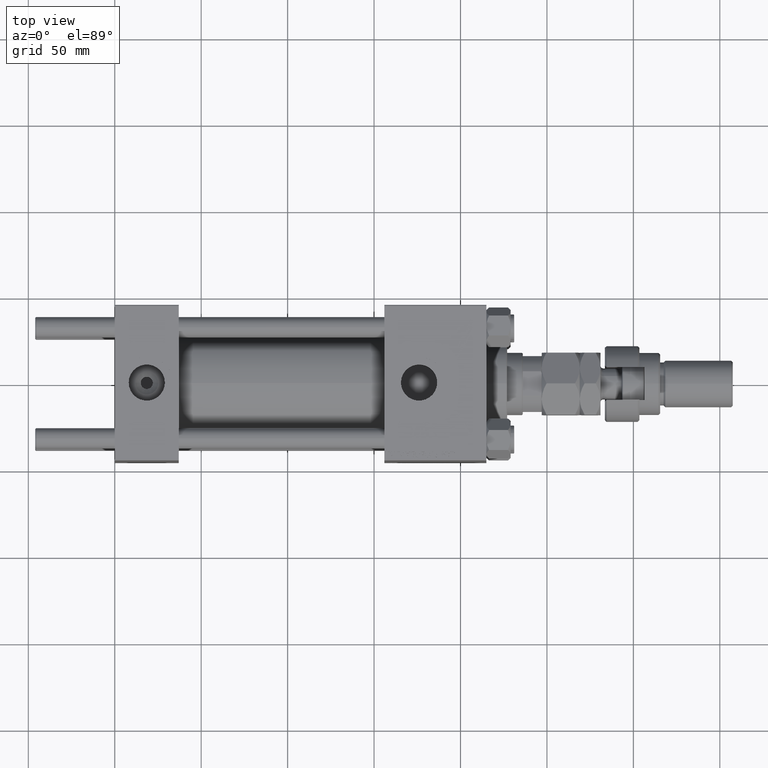
[diagram: clean part render]
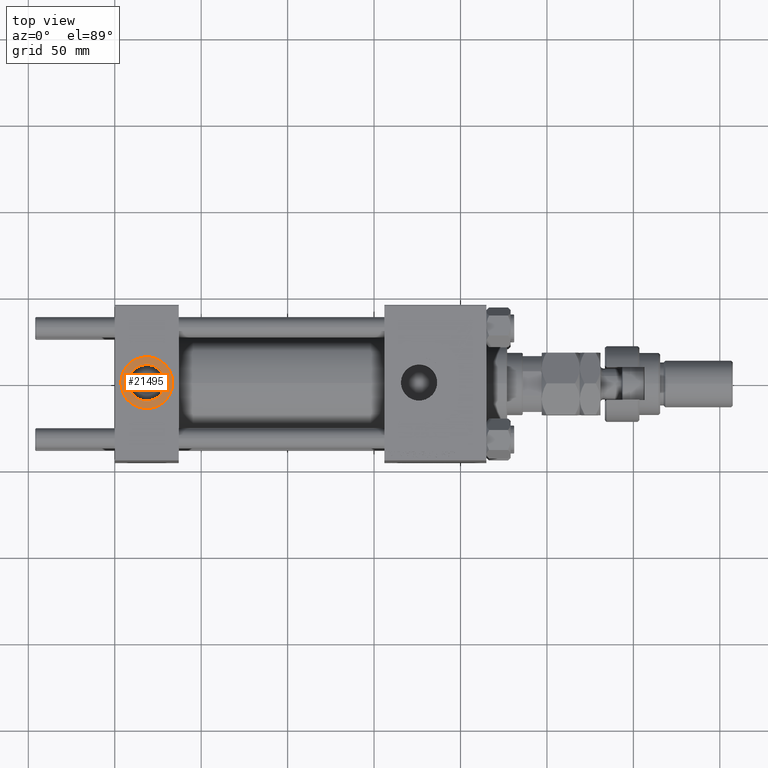
[diagram: same view with one face highlighted and labeled with its STEP entity id]
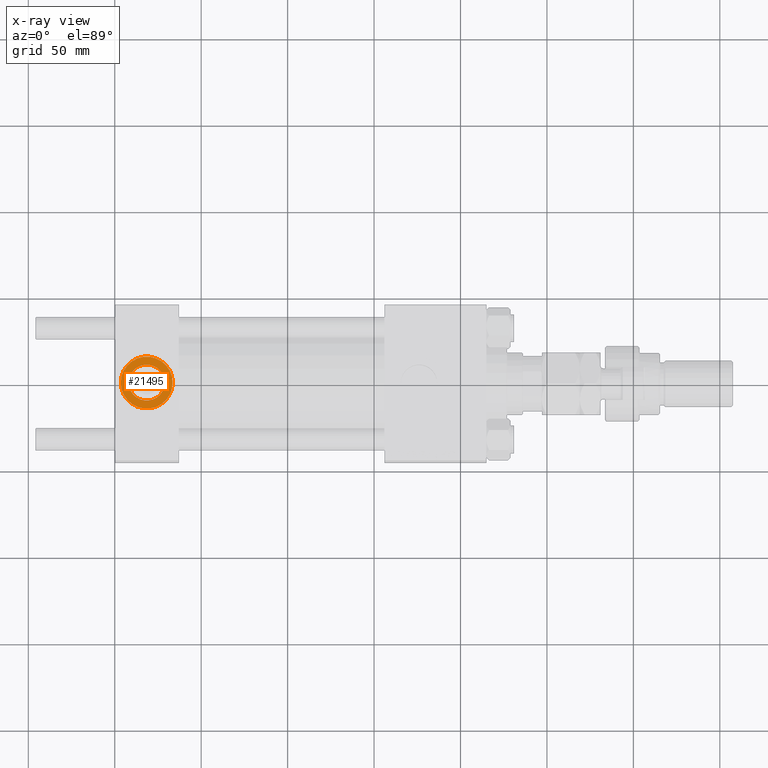
[diagram: x-ray of the same camera — body ghosted, the highlighted face saturated]
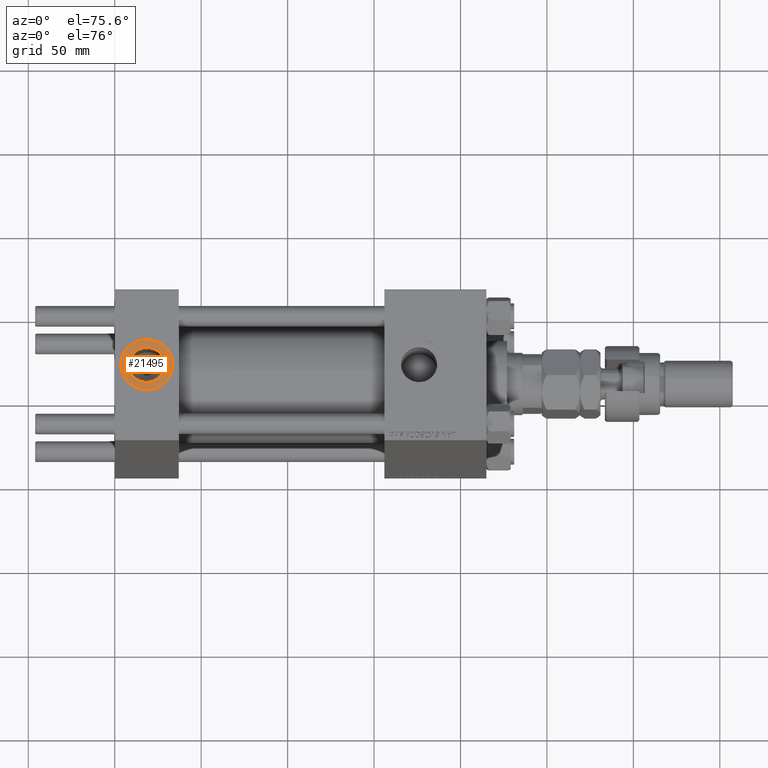
[diagram: same view with one face highlighted and labeled with its STEP entity id]
A machine part, top view. The second image highlights one B-rep face of the part: STEP entity #21495.
The next image is the same camera in x-ray: the body ghosted, the highlighted face saturated — about 0% of this face is hidden behind the body in this view.
A second angle (auxiliary view) of the same face is appended — the face is thin or edge-on in the first view.
In plain terms, the highlighted planar face has unit normal (0, 0, 1).
Its self-contained STEP definition (entity closure, byte-faithful):
#662 = CARTESIAN_POINT ( 'NONE',  ( 18.50000000000000000, -8.673617379884038628E-15, 44.80000000000000426 ) ) ;
#3090 = FACE_BOUND ( 'NONE', #47531, .T. ) ;
#4939 = DIRECTION ( 'NONE',  ( 1.000000000000000000, 0.000000000000000000, 0.000000000000000000 ) ) ;
#6870 = CIRCLE ( 'NONE', #36725, 15.00000000000000355 ) ;
#7093 = PLANE ( 'NONE',  #12525 ) ;
#7726 = VERTEX_POINT ( 'NONE', #36928 ) ;
#8248 = DIRECTION ( 'NONE',  ( 1.000000000000000000, 0.000000000000000000, 0.000000000000000000 ) ) ;
#10180 = CIRCLE ( 'NONE', #13617, 10.48000000000000043 ) ;
#12141 = DIRECTION ( 'NONE',  ( 0.000000000000000000, 0.000000000000000000, 1.000000000000000000 ) ) ;
#12300 = CARTESIAN_POINT ( 'NONE',  ( 18.50000000000000000, -8.673617379884038628E-15, 44.80000000000000426 ) ) ;
#12525 = AXIS2_PLACEMENT_3D ( 'NONE', #40209, #12141, #39943 ) ;
#13368 = VERTEX_POINT ( 'NONE', #19370 ) ;
#13617 = AXIS2_PLACEMENT_3D ( 'NONE', #28886, #25422, #45198 ) ;
#13957 = ORIENTED_EDGE ( 'NONE', *, *, #50768, .T. ) ;
#14199 = AXIS2_PLACEMENT_3D ( 'NONE', #44858, #45132, #8248 ) ;
#16104 = CIRCLE ( 'NONE', #45999, 10.48000000000000043 ) ;
#16861 = DIRECTION ( 'NONE',  ( 0.000000000000000000, 0.000000000000000000, 1.000000000000000000 ) ) ;
#17723 = DIRECTION ( 'NONE',  ( 0.000000000000000000, 0.000000000000000000, 1.000000000000000000 ) ) ;
#19370 = CARTESIAN_POINT ( 'NONE',  ( 3.499999999999997780, -6.836647181163008250E-15, 44.80000000000000426 ) ) ;
#21495 = ADVANCED_FACE ( 'NONE', ( #3090, #48517 ), #7093, .T. ) ;
#24568 = ORIENTED_EDGE ( 'NONE', *, *, #34444, .T. ) ;
#25095 = CARTESIAN_POINT ( 'NONE',  ( 28.98000000000000043, -8.673617379884038628E-15, 44.80000000000000426 ) ) ;
#25422 = DIRECTION ( 'NONE',  ( 0.000000000000000000, 0.000000000000000000, 1.000000000000000000 ) ) ;
#28060 = EDGE_CURVE ( 'NONE', #40903, #52341, #10180, .T. ) ;
#28606 = DIRECTION ( 'NONE',  ( 1.000000000000000000, 0.000000000000000000, 0.000000000000000000 ) ) ;
#28741 = CIRCLE ( 'NONE', #14199, 15.00000000000000355 ) ;
#28886 = CARTESIAN_POINT ( 'NONE',  ( 18.50000000000000000, -8.673617379884038628E-15, 44.80000000000000426 ) ) ;
#31261 = ORIENTED_EDGE ( 'NONE', *, *, #42386, .F. ) ;
#34444 = EDGE_CURVE ( 'NONE', #7726, #13368, #28741, .T. ) ;
#34938 = CARTESIAN_POINT ( 'NONE',  ( 8.019999999999999574, -7.390187534377611561E-15, 44.80000000000000426 ) ) ;
#36725 = AXIS2_PLACEMENT_3D ( 'NONE', #12300, #16861, #28606 ) ;
#36928 = CARTESIAN_POINT ( 'NONE',  ( 33.50000000000000000, -8.673617379884038628E-15, 44.80000000000000426 ) ) ;
#39943 = DIRECTION ( 'NONE',  ( 1.000000000000000000, 0.000000000000000000, -0.000000000000000000 ) ) ;
#40209 = CARTESIAN_POINT ( 'NONE',  ( 18.50000000000000000, -8.673617379884038628E-15, 44.80000000000000426 ) ) ;
#40903 = VERTEX_POINT ( 'NONE', #25095 ) ;
#42386 = EDGE_CURVE ( 'NONE', #52341, #40903, #16104, .T. ) ;
#44858 = CARTESIAN_POINT ( 'NONE',  ( 18.50000000000000000, -8.673617379884038628E-15, 44.80000000000000426 ) ) ;
#45132 = DIRECTION ( 'NONE',  ( 0.000000000000000000, 0.000000000000000000, 1.000000000000000000 ) ) ;
#45198 = DIRECTION ( 'NONE',  ( 1.000000000000000000, 0.000000000000000000, 0.000000000000000000 ) ) ;
#45554 = ORIENTED_EDGE ( 'NONE', *, *, #28060, .F. ) ;
#45815 = EDGE_LOOP ( 'NONE', ( #24568, #13957 ) ) ;
#45999 = AXIS2_PLACEMENT_3D ( 'NONE', #662, #17723, #4939 ) ;
#47531 = EDGE_LOOP ( 'NONE', ( #45554, #31261 ) ) ;
#48517 = FACE_OUTER_BOUND ( 'NONE', #45815, .T. ) ;
#50768 = EDGE_CURVE ( 'NONE', #13368, #7726, #6870, .T. ) ;
#52341 = VERTEX_POINT ( 'NONE', #34938 ) ;